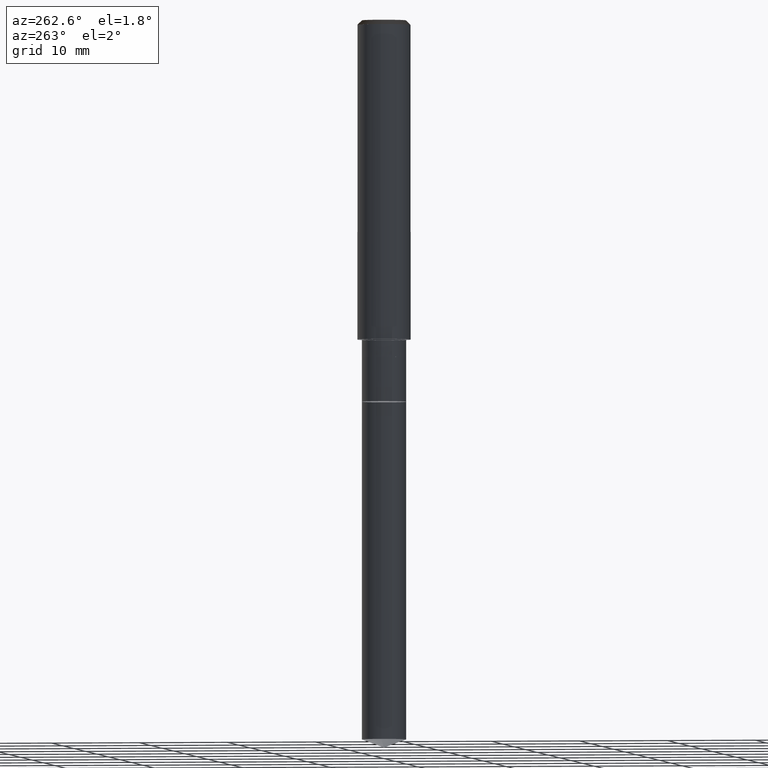
[diagram: clean part render]
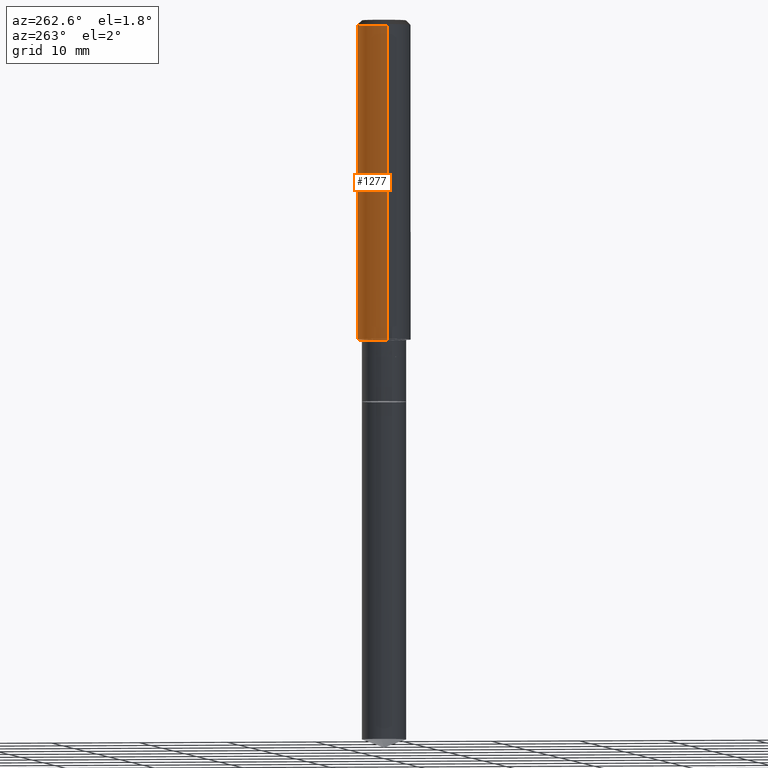
[diagram: same view with one face highlighted and labeled with its STEP entity id]
A machine part, auxiliary view. The second image highlights one B-rep face of the part: STEP entity #1277.
In plain terms, the highlighted face is a freeform B-spline surface patch.
Its self-contained STEP definition (entity closure, byte-faithful):
#1038=CARTESIAN_POINT('',(3.0,0.0,0.0));
#1039=CARTESIAN_POINT('',(3.0,3.0,0.0));
#1040=CARTESIAN_POINT('',(0.0,3.0,0.0));
#1041=CARTESIAN_POINT('',(-3.0,3.0,0.0));
#1042=CARTESIAN_POINT('',(-3.0,0.0,0.0));
#1043=CARTESIAN_POINT('',(3.0,0.0,35.5));
#1044=CARTESIAN_POINT('',(3.0,3.0,35.5));
#1045=CARTESIAN_POINT('',(0.0,3.0,35.5));
#1046=CARTESIAN_POINT('',(-3.0,3.0,35.5));
#1047=CARTESIAN_POINT('',(-3.0,0.0,35.5));
#1258=(
BOUNDED_SURFACE()
B_SPLINE_SURFACE(1,2,(
(#1038,#1039,#1040,#1041,#1042),
(#1043,#1044,#1045,#1046,#1047)
), .UNSPECIFIED.,.F.,.F.,.F.)
B_SPLINE_SURFACE_WITH_KNOTS((2,2),(3,2,3),(
0.0,1.0),(
0.0,0.5,1.0), .UNSPECIFIED.)
GEOMETRIC_REPRESENTATION_ITEM()
RATIONAL_B_SPLINE_SURFACE(((1.0,0.707106781187,1.0,0.707106781187,1.0),
(1.0,0.707106781187,1.0,0.707106781187,1.0)
))
REPRESENTATION_ITEM('')
SURFACE()
);
#1259=(
BOUNDED_CURVE()
B_SPLINE_CURVE(2,(#1042,#1041,#1040,#1039,#1038),.UNSPECIFIED.,.F.,.F.)
B_SPLINE_CURVE_WITH_KNOTS((3,2,3),
(0.0,0.5,1.0),.UNSPECIFIED.)
CURVE()
GEOMETRIC_REPRESENTATION_ITEM()
RATIONAL_B_SPLINE_CURVE((1.0,0.707106781187,1.0,0.707106781187,1.0))
REPRESENTATION_ITEM('')
);
#1260=(
BOUNDED_CURVE()
B_SPLINE_CURVE(1,(#1038,#1043),.UNSPECIFIED.,.F.,.F.)
B_SPLINE_CURVE_WITH_KNOTS((2,2),
(0.0,1.0),.UNSPECIFIED.)
CURVE()
GEOMETRIC_REPRESENTATION_ITEM()
RATIONAL_B_SPLINE_CURVE((1.0,1.0))
REPRESENTATION_ITEM('')
);
#1261=(
BOUNDED_CURVE()
B_SPLINE_CURVE(2,(#1043,#1044,#1045,#1046,#1047),.UNSPECIFIED.,.F.,.F.)
B_SPLINE_CURVE_WITH_KNOTS((3,2,3),
(0.0,0.5,1.0),.UNSPECIFIED.)
CURVE()
GEOMETRIC_REPRESENTATION_ITEM()
RATIONAL_B_SPLINE_CURVE((1.0,0.707106781187,1.0,0.707106781187,1.0))
REPRESENTATION_ITEM('')
);
#1262=(
BOUNDED_CURVE()
B_SPLINE_CURVE(1,(#1047,#1042),.UNSPECIFIED.,.F.,.F.)
B_SPLINE_CURVE_WITH_KNOTS((2,2),
(0.0,1.0),.UNSPECIFIED.)
CURVE()
GEOMETRIC_REPRESENTATION_ITEM()
RATIONAL_B_SPLINE_CURVE((1.0,1.0))
REPRESENTATION_ITEM('')
);
#1263=VERTEX_POINT('',#1038);
#1264=VERTEX_POINT('',#1042);
#1265=VERTEX_POINT('',#1043);
#1266=VERTEX_POINT('',#1047);
#1267=EDGE_CURVE('',#1264,#1263,#1259,.T.);
#1268=EDGE_CURVE('',#1263,#1265,#1260,.T.);
#1269=EDGE_CURVE('',#1265,#1266,#1261,.T.);
#1270=EDGE_CURVE('',#1266,#1264,#1262,.T.);
#1271=ORIENTED_EDGE('',*,*,#1267,.T.);
#1272=ORIENTED_EDGE('',*,*,#1268,.T.);
#1273=ORIENTED_EDGE('',*,*,#1269,.T.);
#1274=ORIENTED_EDGE('',*,*,#1270,.T.);
#1275=EDGE_LOOP('',(#1271,#1272,#1273,#1274));
#1276=FACE_OUTER_BOUND('',#1275,.T.);
#1277=ADVANCED_FACE('',(#1276),#1258,.T.);